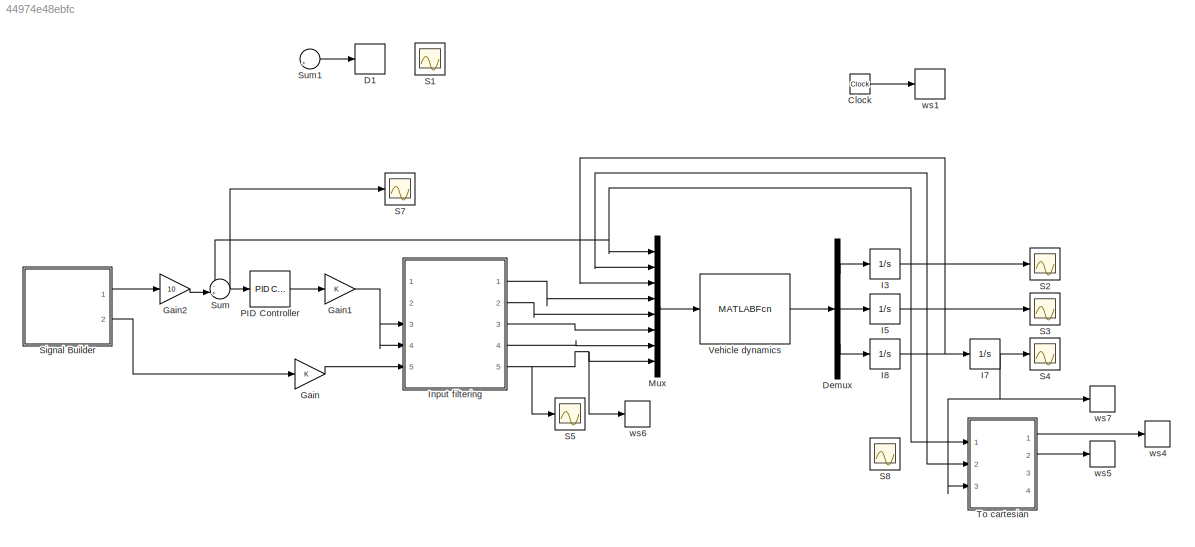
MODEL slx_44974e48ebfc
KIND model
BLOCK [Clock] Clock
BLOCK [Derivative] D1
  Commented = on
BLOCK [Demux] Demux
  DisplayOption = bar
  Outputs = 3
  Ports = [1, 3]
BLOCK [Gain] Gain
  OutDataTypeStr = Inherit: Inherit via internal rule
  ParamDataTypeStr = Inherit: Inherit via internal rule
  SaturateOnIntegerOverflow = off
BLOCK [Gain] Gain1
  OutDataTypeStr = Inherit: Inherit via internal rule
  ParamDataTypeStr = Inherit: Inherit via internal rule
  SaturateOnIntegerOverflow = off
BLOCK [Gain] Gain2
  Gain = 10
  OutDataTypeStr = Inherit: Inherit via internal rule
  ParamDataTypeStr = Inherit: Inherit via internal rule
  SaturateOnIntegerOverflow = off
BLOCK [Integrator] I3
  InitialCondition = 10
  Ports = [1, 1]
BLOCK [Integrator] I5
  Ports = [1, 1]
BLOCK [Integrator] I7
  Ports = [1, 1]
BLOCK [Integrator] I8
  Ports = [1, 1]
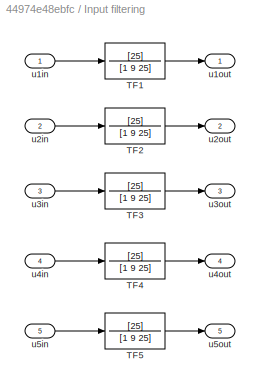
BLOCK [SubSystem] Input filtering
  Ports = [5, 5]
  RequestExecContextInheritance = off
BLOCK [TransferFcn] Input filtering/TF1
  Denominator = [1  9 25]
  Numerator = [25]
BLOCK [TransferFcn] Input filtering/TF2
  Denominator = [1  9 25]
  Numerator = [25]
BLOCK [TransferFcn] Input filtering/TF3
  Denominator = [1  9 25]
  Numerator = [25]
BLOCK [TransferFcn] Input filtering/TF4
  Denominator = [1  9 25]
  Numerator = [25]
BLOCK [TransferFcn] Input filtering/TF5
  Denominator = [1  9 25]
  Numerator = [25]
BLOCK [Inport] Input filtering/u1in
  IconDisplay = Port number
BLOCK [Outport] Input filtering/u1out
  IconDisplay = Port number
BLOCK [Inport] Input filtering/u2in
  IconDisplay = Port number
  Port = 2
BLOCK [Outport] Input filtering/u2out
  IconDisplay = Port number
  Port = 2
BLOCK [Inport] Input filtering/u3in
  IconDisplay = Port number
  Port = 3
BLOCK [Outport] Input filtering/u3out
  IconDisplay = Port number
  Port = 3
BLOCK [Inport] Input filtering/u4in
  IconDisplay = Port number
  Port = 4
BLOCK [Outport] Input filtering/u4out
  IconDisplay = Port number
  Port = 4
BLOCK [Inport] Input filtering/u5in
  IconDisplay = Port number
  Port = 5
BLOCK [Outport] Input filtering/u5out
  IconDisplay = Port number
  Port = 5
BLOCK [Mux] Mux
  DisplayOption = bar
  Inputs = 8
  Ports = [8, 1]
BLOCK [Reference] PID Controller  REF=simulink/Continuous/PID Controller
  AntiWindupMode = none
  Controller = PID
  D = 0.0290022649762976
  DOutDataTypeStr = Inherit: Inherit via internal rule
  DOutMax = []
  DOutMin = []
  DParamDataTypeStr = Inherit: Inherit via internal rule
  DParamMax = []
  DParamMin = []
  DifferentiatorICPrevScaledInput = 0
  DifferentiatorOutDataTypeStr = Inherit: Inherit via internal rule
  DifferentiatorOutMax = []
  DifferentiatorOutMin = []
  ExternalReset = none
  FilterContinuousStateAttributes = ''
  FilterMethod = Forward Euler
  FilterOutDataTypeStr = Inherit: Inherit via internal rule
  FilterOutMax = []
  FilterOutMin = []
  FilterRTWStateStorageClass = Auto
  FilterStateMustResolveToSignalObject = off
  Form = Parallel
  I = 0.000493072116102459
  IOutDataTypeStr = Inherit: Inherit via internal rule
  IOutMax = []
  IOutMin = []
  IParamDataTypeStr = Inherit: Inherit via internal rule
  IParamMax = []
  IParamMin = []
  IgnoreLimit = off
  InitialConditionForFilter = 0
  InitialConditionForIntegrator = 0
  InitialConditionSource = internal
  IntegratorContinuousStateAttributes = ''
  IntegratorMethod = Forward Euler
  IntegratorOutDataTypeStr = Inherit: Inherit via internal rule
  IntegratorOutMax = []
  IntegratorOutMin = []
  IntegratorRTWStateStorageClass = Auto
  IntegratorStateMustResolveToSignalObject = off
  Kb = 1
  KbOutDataTypeStr = Inherit: Inherit via internal rule
  KbOutMax = []
  KbOutMin = []
  KbParamDataTypeStr = Inherit: Inherit via internal rule
  KbParamMax = []
  KbParamMin = []
  Kt = 1
  KtOutDataTypeStr = Inherit: Inherit via internal rule
  KtOutMax = []
  KtOutMin = []
  KtParamDataTypeStr = Inherit: Inherit via internal rule
  KtParamMax = []
  KtParamMin = []
  LimitOutput = off
  LinearizeAsGain = on
  LockScale = off
  LowerSaturationLimit = -inf
  N = 1203.98057781213
  NOutDataTypeStr = Inherit: Inherit via internal rule
  NOutMax = []
  NOutMin = []
  NParamDataTypeStr = Inherit: Inherit via internal rule
  NParamMax = []
  NParamMin = []
  P = 0.00802251788658118
  POutDataTypeStr = Inherit: Inherit via internal rule
  POutMax = []
  POutMin = []
  PParamDataTypeStr = Inherit: Inherit via internal rule
  PParamMax = []
  PParamMin = []
  Ports = [1, 1]
  RndMeth = Floor
  SampleTime = -1
  SaturateOnIntegerOverflow = off
  SaturationOutDataTypeStr = Inherit: Same as input
  SaturationOutMax = []
  SaturationOutMin = []
  SourceBlock = simulink/Continuous/PID Controller
  SourceType = PID 1dof
  SumAccumDataTypeStr = Inherit: Inherit via internal rule
  SumDAccumDataTypeStr = Inherit: Inherit via internal rule
  SumDOutDataTypeStr = Inherit: Inherit via internal rule
  SumDOutMax = []
  SumDOutMin = []
  SumI1AccumDataTypeStr = Inherit: Inherit via internal rule
  SumI1OutDataTypeStr = Inherit: Inherit via internal rule
  SumI1OutMax = []
  SumI1OutMin = []
  SumI2AccumDataTypeStr = Inherit: Inherit via internal rule
  SumI2OutDataTypeStr = Inherit: Inherit via internal rule
  SumI2OutMax = []
  SumI2OutMin = []
  SumI3AccumDataTypeStr = Inherit: Inherit via internal rule
  SumI3OutDataTypeStr = Inherit: Inherit via internal rule
  SumI3OutMax = []
  SumI3OutMin = []
  SumOutDataTypeStr = Inherit: Inherit via internal rule
  SumOutMax = []
  SumOutMin = []
  TimeDomain = Continuous-time
  TrackingMode = off
  UpperSaturationLimit = inf
  UseFilter = on
  ZeroCross = on
BLOCK [Scope] S1
  Commented = on
  Floating = off
  NumInputPorts = 1
  Ports = [1]
  ShowLegends = off
BLOCK [Scope] S2
  Floating = off
  LimitDataPoints = off
  NumInputPorts = 1
  Ports = [1]
  SaveName = ScopeData1
  ShowLegends = off
  TimeRange = 10
  YMax = 10
  YMin = 0
BLOCK [Scope] S3
  Floating = off
  LimitDataPoints = off
  NumInputPorts = 1
  Ports = [1]
  SaveName = ScopeData2
  ShowLegends = off
  YMax = 3.5
  YMin = 1
BLOCK [Scope] S4
  Floating = off
  LimitDataPoints = off
  NumInputPorts = 1
  Ports = [1]
  SaveName = ScopeData3
  ShowLegends = off
  YMax = 1e-06
  YMin = -4e-06
BLOCK [Scope] S5
  Floating = off
  LimitDataPoints = off
  NumInputPorts = 1
  Ports = [1]
  SaveName = ScopeData4
  ShowLegends = off
  YMax = 1.00002
  YMin = 1
BLOCK [Scope] S7
  Floating = off
  LimitDataPoints = off
  NumInputPorts = 1
  Ports = [1]
  SaveName = ScopeData6
  ShowLegends = off
  YMax = 1.00002
  YMin = 1
BLOCK [Scope] S8
  Floating = off
  LimitDataPoints = off
  NumInputPorts = 1
  Ports = [1]
  SaveName = ScopeData7
  ShowLegends = off
  TimeRange = 10
  YMax = 10
  YMin = 0
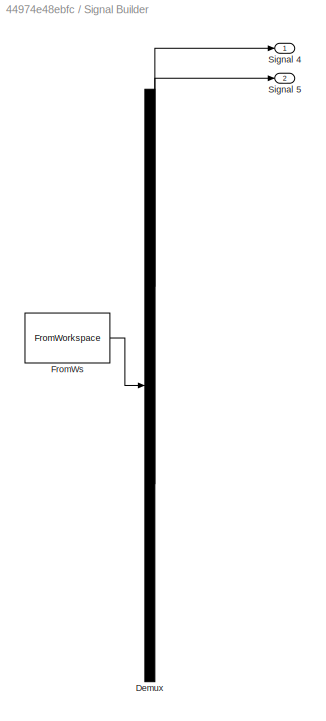
BLOCK [SubSystem] Signal Builder
  ClipboardFcn = sigbuilder_block('clipboard');
  CloseFcn = sigbuilder_block('close');
  ContinueFcn = sigbuilder_block('continue');
  CopyFcn = sigbuilder_block('copy');
  DeleteFcn = sigbuilder_block('delete');
  LoadFcn = sigbuilder_block('load');
  MaskHideContents = on
  ModelCloseFcn = sigbuilder_block('modelClose');
  NameChangeFcn = sigbuilder_block('namechange');
  OpenFcn = sigbuilder_block('open',[437.6 199.2 550.4 400 ]);
  PauseFcn = sigbuilder_block('pause');
  Ports = [0, 2]
  PreSaveFcn = sigbuilder_block('preSave');
  RequestExecContextInheritance = off
  StartFcn = sigbuilder_block('start');
  StopFcn = sigbuilder_block('stop');
  Tag = STV Subsys
BLOCK [Demux] Signal Builder/Demux
  Outputs = 2
  Ports = [1, 2]
  Tag = STV Demux
BLOCK [FromWorkspace] Signal Builder/FromWs
  SampleTime = 0
  Tag = STV FromWs
  VariableName = tuvar
  ZeroCross = on
BLOCK [Outport] Signal Builder/Signal 4
  IconDisplay = Port number
  Tag = STV Outport
BLOCK [Outport] Signal Builder/Signal 5
  IconDisplay = Port number
  Port = 2
  Tag = STV Outport
BLOCK [Sum] Sum
  IconShape = round
  InputSameDT = off
  Inputs = -+|
  OutDataTypeStr = Inherit: Inherit via internal rule
  Ports = [2, 1]
  SaturateOnIntegerOverflow = off
BLOCK [Sum] Sum1
  Commented = on
  IconShape = round
  InputSameDT = off
  Inputs = |++
  OutDataTypeStr = Inherit: Inherit via internal rule
  Ports = [2, 1]
  SaturateOnIntegerOverflow = off
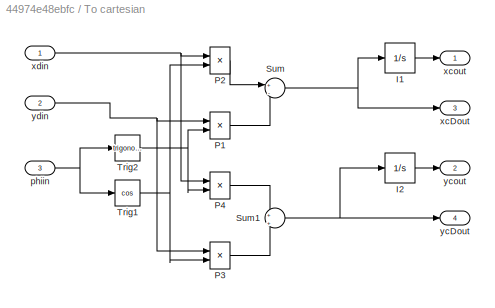
BLOCK [SubSystem] To cartesian
  Ports = [3, 4]
  RequestExecContextInheritance = off
BLOCK [Integrator] To cartesian/I1
  InitialCondition = 1
  Ports = [1, 1]
BLOCK [Integrator] To cartesian/I2
  InitialCondition = 1
  Ports = [1, 1]
BLOCK [Product] To cartesian/P1
  InputSameDT = off
  OutDataTypeStr = Inherit: Inherit via internal rule
  Ports = [2, 1]
  RndMeth = Floor
  SaturateOnIntegerOverflow = off
BLOCK [Product] To cartesian/P2
  InputSameDT = off
  OutDataTypeStr = Inherit: Inherit via internal rule
  Ports = [2, 1]
  RndMeth = Floor
  SaturateOnIntegerOverflow = off
BLOCK [Product] To cartesian/P3
  InputSameDT = off
  OutDataTypeStr = Inherit: Inherit via internal rule
  Ports = [2, 1]
  RndMeth = Floor
  SaturateOnIntegerOverflow = off
BLOCK [Product] To cartesian/P4
  InputSameDT = off
  OutDataTypeStr = Inherit: Inherit via internal rule
  Ports = [2, 1]
  RndMeth = Floor
  SaturateOnIntegerOverflow = off
BLOCK [Sum] To cartesian/Sum
  IconShape = round
  InputSameDT = off
  Inputs = +|-
  OutDataTypeStr = Inherit: Inherit via internal rule
  Ports = [2, 1]
  SaturateOnIntegerOverflow = off
BLOCK [Sum] To cartesian/Sum1
  IconShape = round
  InputSameDT = off
  Inputs = +|+
  OutDataTypeStr = Inherit: Inherit via internal rule
  Ports = [2, 1]
  SaturateOnIntegerOverflow = off
BLOCK [Trigonometry] To cartesian/Trig1
  Operator = cos
  Ports = [1, 1]
BLOCK [Trigonometry] To cartesian/Trig2
  Ports = [1, 1]
BLOCK [Inport] To cartesian/phiin
  IconDisplay = Port number
  Port = 3
BLOCK [Outport] To cartesian/xcDout
  IconDisplay = Port number
  Port = 3
BLOCK [Outport] To cartesian/xcout
  IconDisplay = Port number
BLOCK [Inport] To cartesian/xdin
  IconDisplay = Port number
BLOCK [Outport] To cartesian/ycDout
  IconDisplay = Port number
  Port = 4
BLOCK [Outport] To cartesian/ycout
  IconDisplay = Port number
  Port = 2
BLOCK [Inport] To cartesian/ydin
  IconDisplay = Port number
  Port = 2
BLOCK [MATLABFcn] Vehicle dynamics
  MATLABFcn = vehdyn
  Ports = [1, 1]
BLOCK [ToWorkspace] ws1
  FixptAsFi = on
  MaxDataPoints = inf
  Ports = [1]
  SampleTime = -1
  Save2DSignal = 3-D array (concatenate along third dimension)
  VariableName = t
BLOCK [ToWorkspace] ws4
  FixptAsFi = on
  MaxDataPoints = inf
  Ports = [1]
  SampleTime = -1
  Save2DSignal = 3-D array (concatenate along third dimension)
  VariableName = xc
BLOCK [ToWorkspace] ws5
  FixptAsFi = on
  MaxDataPoints = inf
  Ports = [1]
  SampleTime = -1
  Save2DSignal = 3-D array (concatenate along third dimension)
  VariableName = yc
BLOCK [ToWorkspace] ws6
  FixptAsFi = on
  MaxDataPoints = inf
  Ports = [1]
  SampleTime = -1
  Save2DSignal = 3-D array (concatenate along third dimension)
  VariableName = delta
BLOCK [ToWorkspace] ws7
  FixptAsFi = on
  MaxDataPoints = inf
  Ports = [1]
  SampleTime = -1
  Save2DSignal = 3-D array (concatenate along third dimension)
  VariableName = phi
LINE Clock:1 -> ws1:1
LINE Demux:1 -> I3:1
LINE Demux:2 -> I5:1
LINE Demux:3 -> I8:1
NET Gain1:1 -> Input filtering:3, Input filtering:4
LINE Gain2:1 -> Sum:2
LINE Gain:1 -> Input filtering:5
NET I3:1 -> Mux:1, S2:1, Sum:1, To cartesian:1
NET I5:1 -> Mux:2, S3:1, To cartesian:2
NET I7:1 -> S4:1, To cartesian:3, ws7:1
NET I8:1 -> I7:1, Mux:3
LINE Input filtering/TF1:1 -> Input filtering/u1out:1
LINE Input filtering/TF2:1 -> Input filtering/u2out:1
LINE Input filtering/TF3:1 -> Input filtering/u3out:1
LINE Input filtering/TF4:1 -> Input filtering/u4out:1
LINE Input filtering/TF5:1 -> Input filtering/u5out:1
LINE Input filtering/u1in:1 -> Input filtering/TF1:1
LINE Input filtering/u2in:1 -> Input filtering/TF2:1
LINE Input filtering/u3in:1 -> Input filtering/TF3:1
LINE Input filtering/u4in:1 -> Input filtering/TF4:1
LINE Input filtering/u5in:1 -> Input filtering/TF5:1
LINE Input filtering:1 -> Mux:4
LINE Input filtering:2 -> Mux:5
LINE Input filtering:3 -> Mux:6
LINE Input filtering:4 -> Mux:7
NET Input filtering:5 -> Mux:8, S5:1, ws6:1
LINE Mux:1 -> Vehicle dynamics:1
LINE PID Controller:1 -> Gain1:1
LINE Signal Builder:1 -> Gain2:1
LINE Signal Builder:2 -> Gain:1
LINE Sum1:1 -> D1:1
NET Sum:1 -> PID Controller:1, S7:1
LINE To cartesian/I1:1 -> To cartesian/xcout:1
LINE To cartesian/I2:1 -> To cartesian/ycout:1
LINE To cartesian/P1:1 -> To cartesian/Sum:2
LINE To cartesian/P2:1 -> To cartesian/Sum:1
LINE To cartesian/P3:1 -> To cartesian/Sum1:2
LINE To cartesian/P4:1 -> To cartesian/Sum1:1
NET To cartesian/Sum1:1 -> To cartesian/I2:1, To cartesian/ycDout:1
NET To cartesian/Sum:1 -> To cartesian/I1:1, To cartesian/xcDout:1
NET To cartesian/Trig1:1 -> To cartesian/P2:2, To cartesian/P3:2
NET To cartesian/Trig2:1 -> To cartesian/P1:2, To cartesian/P4:2
NET To cartesian/phiin:1 -> To cartesian/Trig1:1, To cartesian/Trig2:1
NET To cartesian/xdin:1 -> To cartesian/P2:1, To cartesian/P4:1
NET To cartesian/ydin:1 -> To cartesian/P1:1, To cartesian/P3:1
LINE To cartesian:1 -> ws4:1
LINE To cartesian:2 -> ws5:1
LINE Vehicle dynamics:1 -> Demux:1
note: NET lines group one-source signal fan-out (src -> all destinations, sorted); 1:1 wires keep LINE
